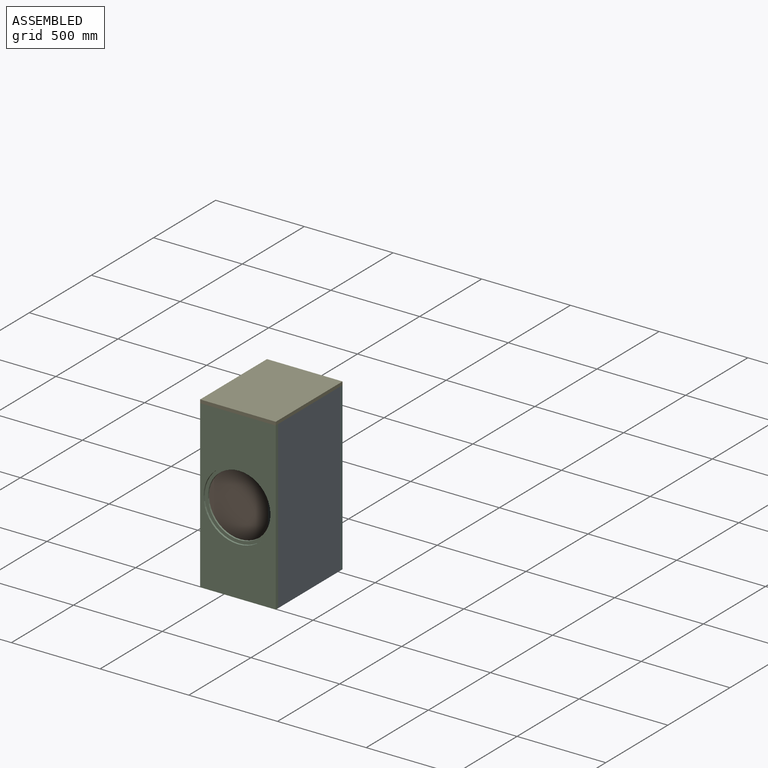
[diagram: assembled view]
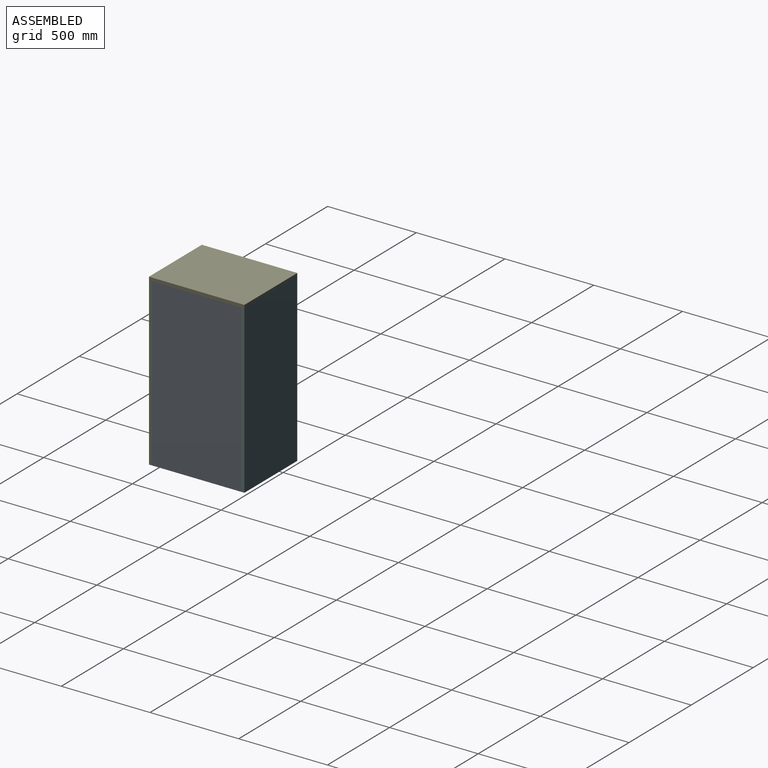
[diagram: assembled view, second angle]
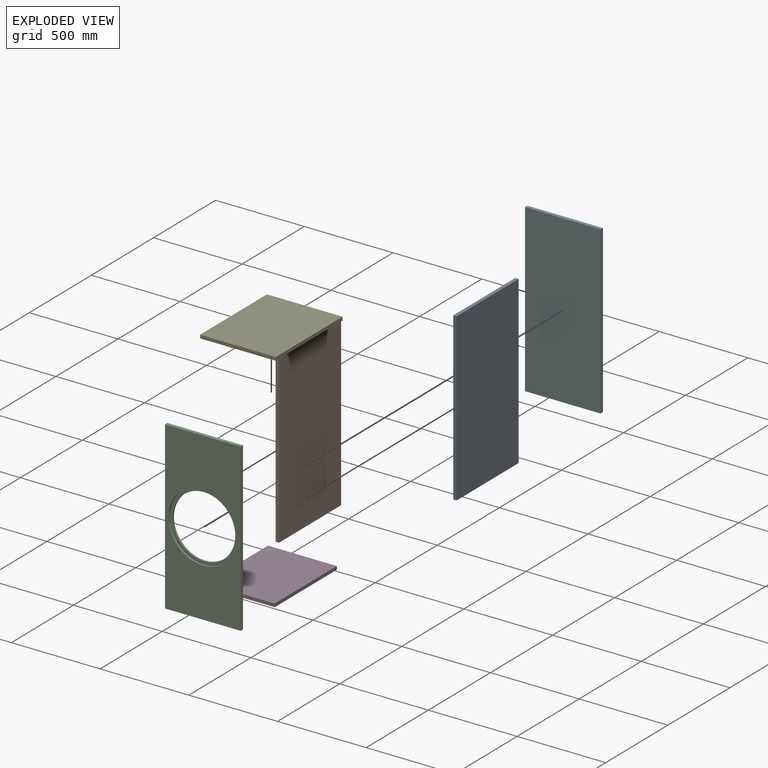
[diagram: exploded view]
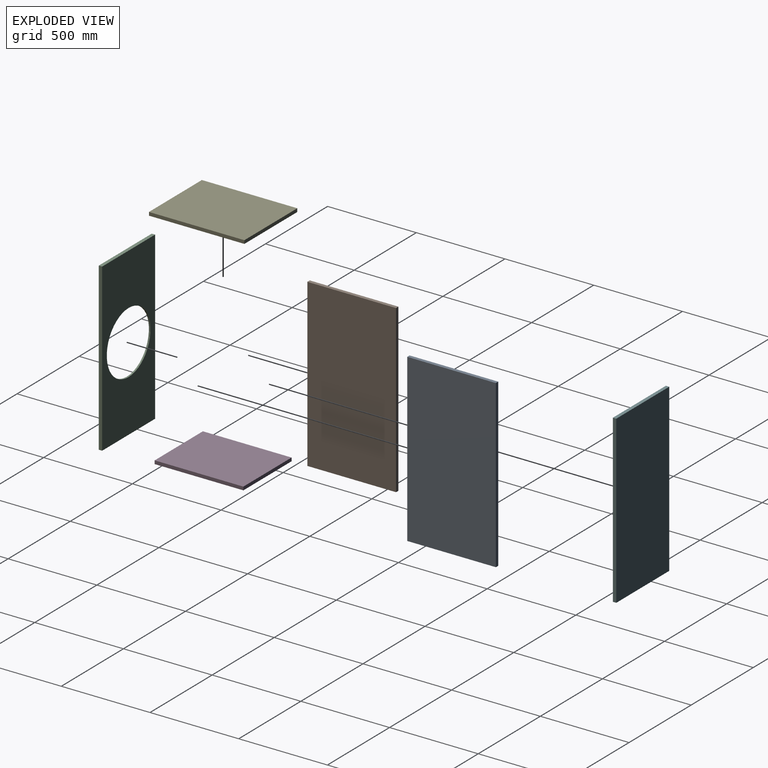
[diagram: exploded view, second angle]
ASSEMBLY  parts=6 mates=5
PART A: 6 faces, bbox 500x938.1x19 mm
  f0: plane 500x19mm, normal (0,1,0), area 9500mm2, adj f1,f3,f4,f5
  f1: plane 938.1x19mm, normal (-1,0,0), area 17823.9mm2, adj f0,f2,f4,f5
  f2: plane 500x19mm, normal (0,-1,0), area 9500mm2, adj f1,f3,f4,f5
  f3: plane 938.1x19mm, normal (1,0,0), area 17823.9mm2, adj f0,f2,f4,f5
  f4: plane 938.1x500mm, normal (0,0,1), area 469050mm2, adj f0,f1,f2,f3
  f5: plane 938.1x500mm, normal (0,0,-1), area 469050mm2, adj f0,f1,f2,f3
PART B: same geometry as A
PART C: 9 faces, bbox 426x19x938.1 mm
  f0: plane 938.1x19mm, normal (-1,0,0), area 17823.9mm2, adj f1,f4,f5,f6
  f1: plane 426x19mm, normal (0,0,-1), area 8094mm2, adj f0,f2,f5,f6
  f2: plane 938.1x19mm, normal (1,0,0), area 17823.9mm2, adj f1,f4,f5,f6
  f3: cylinder r=194mm len=388mm, axis (0,1,0), area 12189.4mm2, adj f5,f8
  f4: plane 426x19mm, normal (0,0,1), area 8094mm2, adj f0,f2,f5,f6
  f5: plane 938.1x426mm, normal (0,-1,0), area 281393.6mm2, adj f0,f1,f2,f3,f4
  f6: plane 938.1x426mm, normal (0,1,0), area 302316.6mm2, adj f0,f1,f2,f4,f7
  f7: cylinder r=176mm len=352mm, axis (0,1,0), area 9952.6mm2, adj f6,f8
  f8: plane 388x388mm, normal (0,-1,0), area 20923mm2, adj f3,f7
PART D: 6 faces, bbox 388x500x19 mm
  f0: plane 388x19mm, normal (0,-1,0), area 7372mm2, adj f1,f3,f4,f5
  f1: plane 500x19mm, normal (1,0,0), area 9500mm2, adj f0,f2,f4,f5
  f2: plane 388x19mm, normal (0,1,0), area 7372mm2, adj f1,f3,f4,f5
  f3: plane 500x19mm, normal (-1,0,0), area 9500mm2, adj f0,f2,f4,f5
  f4: plane 500x388mm, normal (0,0,1), area 194000mm2, adj f0,f1,f2,f3
  f5: plane 500x388mm, normal (0,0,-1), area 194000mm2, adj f0,f1,f2,f3
PART E: 6 faces, bbox 426x538x19 mm
  f0: plane 538x19mm, normal (1,0,0), area 10222mm2, adj f1,f3,f4,f5
  f1: plane 426x19mm, normal (0,1,0), area 8094mm2, adj f0,f2,f4,f5
  f2: plane 538x19mm, normal (-1,0,0), area 10222mm2, adj f1,f3,f4,f5
  f3: plane 426x19mm, normal (0,-1,0), area 8094mm2, adj f0,f2,f4,f5
  f4: plane 538x426mm, normal (0,0,1), area 229188mm2, adj f0,f1,f2,f3
  f5: plane 538x426mm, normal (0,0,-1), area 229188mm2, adj f0,f1,f2,f3
PART F: 6 faces, bbox 426x938.1x19 mm
  f0: plane 426x19mm, normal (0,1,0), area 8094mm2, adj f1,f3,f4,f5
  f1: plane 938.1x19mm, normal (-1,0,0), area 17823.9mm2, adj f0,f2,f4,f5
  f2: plane 426x19mm, normal (0,-1,0), area 8094mm2, adj f1,f3,f4,f5
  f3: plane 938.1x19mm, normal (1,0,0), area 17823.9mm2, adj f0,f2,f4,f5
  f4: plane 938.1x426mm, normal (0,0,1), area 399630.6mm2, adj f0,f1,f2,f3
  f5: plane 938.1x426mm, normal (0,0,-1), area 399630.6mm2, adj f0,f1,f2,f3
PLACE A rot(axis=(0.58,0.58,0.58),120deg) t=(295.91,854.86,971.85)mm
PLACE B rot(axis=(-0.58,0.58,-0.58),120deg) t=(-111.09,611.4,971.33)mm
PLACE C t=(376.23,483.13,972.62)mm
PLACE D t=(153.59,455.21,502.54)mm
PLACE E t=(94.08,645.64,1440.64)mm
PLACE F rot(axis=(-1,0,0),90deg) t=(153.54,983.13,1317.62)mm
MATE fastened A.f1 <-> C.f6  axis (0,1,0) through (314.91,483.13,502.54)mm
MATE fastened E.f5 <-> C.f4  axis (0,0,-1) through (-111.09,464.13,1440.64)mm
MATE fastened F.f5 <-> B.f1  axis (0,1,0) through (-111.09,983.13,502.54)mm
MATE fastened B.f3 <-> C.f6  axis (0,-1,0) through (-111.09,483.13,502.54)mm
MATE fastened C.f6 <-> D.f0  axis (0,1,0) through (314.91,483.13,502.54)mm
